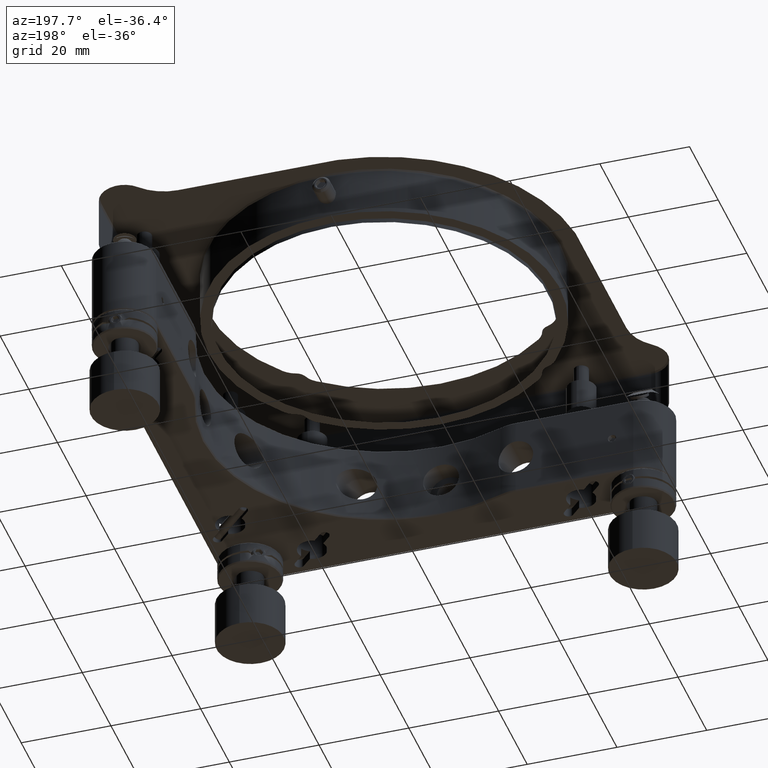
[diagram: clean part render]
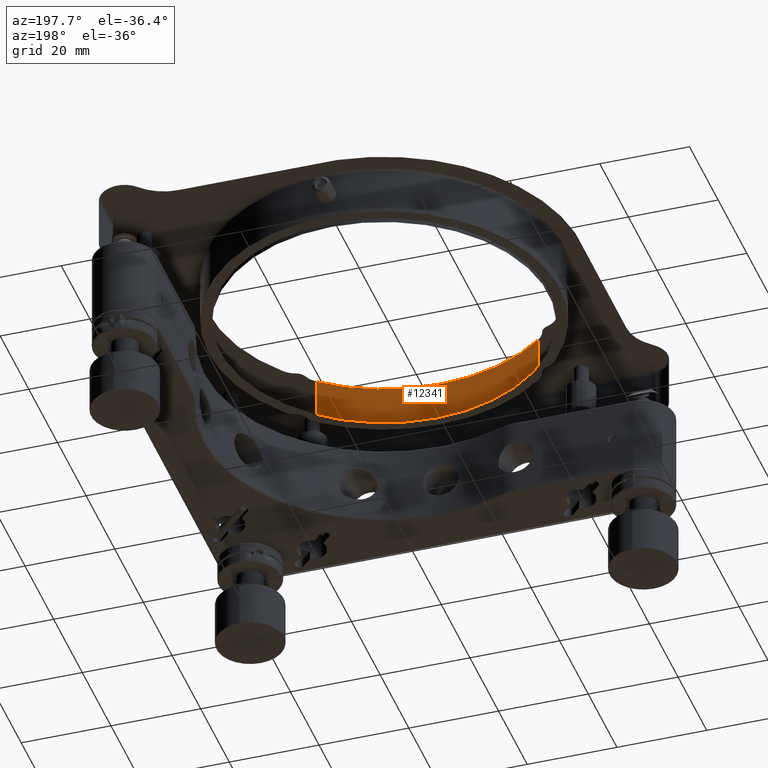
[diagram: same view with one face highlighted and labeled with its STEP entity id]
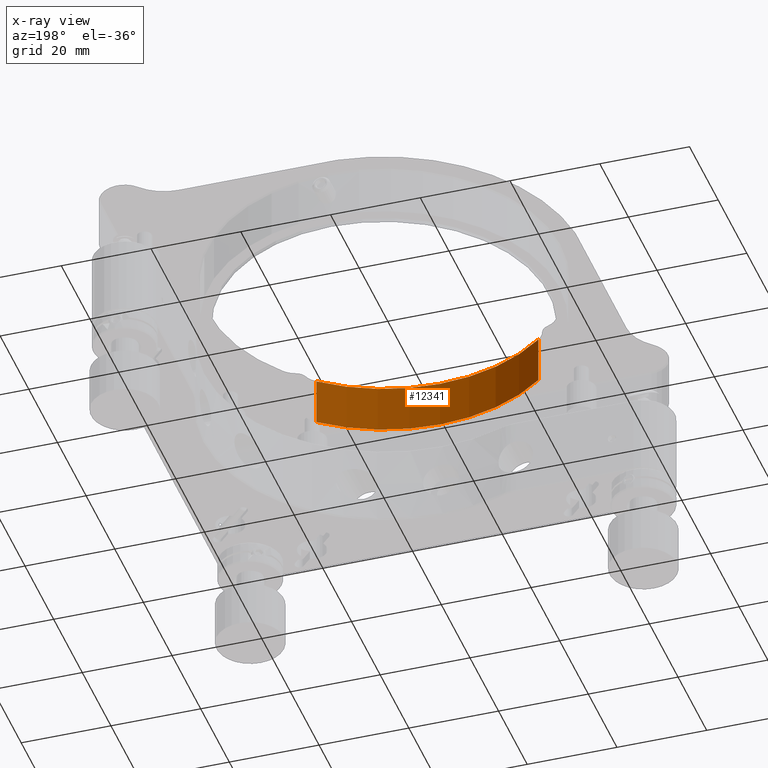
[diagram: x-ray of the same camera — body ghosted, the highlighted face saturated]
A machine part, auxiliary view. The second image highlights one B-rep face of the part: STEP entity #12341.
The next image is the same camera in x-ray: the body ghosted, the highlighted face saturated — about 0% of this face is hidden behind the body in this view.
In plain terms, the highlighted cylindrical surface (partial cylindrical patch) has radius 39.1 mm, axis along (0, -0, 1).
Its self-contained STEP definition (entity closure, byte-faithful):
#388 = ORIENTED_EDGE ( 'NONE', *, *, #9098, .T. ) ;
#393 = VERTEX_POINT ( 'NONE', #17038 ) ;
#667 = CARTESIAN_POINT ( 'NONE',  ( -24.73133962535597519, -30.28482855053491463, -97.59150057757604202 ) ) ;
#1723 = CARTESIAN_POINT ( 'NONE',  ( 24.73133962535004926, -30.28482855053983513, 6.928932188134511172 ) ) ;
#1820 = LINE ( 'NONE', #667, #4549 ) ;
#1822 = CARTESIAN_POINT ( 'NONE',  ( 24.73133962535299091, -30.28482855053740863, 13.99999999999997868 ) ) ;
#1878 = AXIS2_PLACEMENT_3D ( 'NONE', #11546, #12876, #10129 ) ;
#2439 = CYLINDRICAL_SURFACE ( 'NONE', #4232, 39.10000000000000142 ) ;
#2754 = CIRCLE ( 'NONE', #4184, 39.10000000000000142 ) ;
#3338 = ORIENTED_EDGE ( 'NONE', *, *, #16499, .T. ) ;
#4184 = AXIS2_PLACEMENT_3D ( 'NONE', #9200, #13618, #9283 ) ;
#4232 = AXIS2_PLACEMENT_3D ( 'NONE', #6596, #7834, #14733 ) ;
#4467 = DIRECTION ( 'NONE',  ( -1.137208903880104210E-16, 1.216571513026822848E-16, -1.000000000000000000 ) ) ;
#4549 = VECTOR ( 'NONE', #15178, 1000.000000000000000 ) ;
#5053 = ORIENTED_EDGE ( 'NONE', *, *, #10915, .T. ) ;
#6596 = CARTESIAN_POINT ( 'NONE',  ( 1.300335311408469731E-15, 4.508649125234561723E-14, -97.59150057757604202 ) ) ;
#7834 = DIRECTION ( 'NONE',  ( 1.137208903880104210E-16, -1.216571513026822848E-16, 1.000000000000000000 ) ) ;
#9098 = EDGE_CURVE ( 'NONE', #393, #17323, #17146, .T. ) ;
#9200 = CARTESIAN_POINT ( 'NONE',  ( 1.399062011682459279E-14, 3.151058718248609321E-14, 13.99999999999998401 ) ) ;
#9283 = DIRECTION ( 'NONE',  ( 0.000000000000000000, -1.000000000000000000, -1.330989879266092409E-16 ) ) ;
#9864 = VERTEX_POINT ( 'NONE', #12640 ) ;
#10129 = DIRECTION ( 'NONE',  ( 0.000000000000000000, -1.000000000000000000, -8.873265861773948569E-17 ) ) ;
#10712 = VECTOR ( 'NONE', #4467, 1000.000000000000000 ) ;
#10802 = EDGE_LOOP ( 'NONE', ( #388, #3338, #5053, #12934 ) ) ;
#10915 = EDGE_CURVE ( 'NONE', #9864, #11384, #2754, .T. ) ;
#11384 = VERTEX_POINT ( 'NONE', #1822 ) ;
#11546 = CARTESIAN_POINT ( 'NONE',  ( 1.520743364397455933E-14, 3.020885566354926109E-14, 24.69999999998465157 ) ) ;
#12028 = CARTESIAN_POINT ( 'NONE',  ( -24.73133962535739983, -30.28482855051715106, 24.69999999998464091 ) ) ;
#12341 = ADVANCED_FACE ( 'NONE', ( #15891 ), #2439, .T. ) ;
#12640 = CARTESIAN_POINT ( 'NONE',  ( -24.73133962535595387, -30.28482855053496436, 13.99999999999999112 ) ) ;
#12876 = DIRECTION ( 'NONE',  ( -1.137208903880104210E-16, 1.216571513026822848E-16, -1.000000000000000000 ) ) ;
#12934 = ORIENTED_EDGE ( 'NONE', *, *, #14052, .F. ) ;
#13618 = DIRECTION ( 'NONE',  ( 1.137208903880104210E-16, -1.216571513026822848E-16, 1.000000000000000000 ) ) ;
#14052 = EDGE_CURVE ( 'NONE', #393, #11384, #16505, .T. ) ;
#14733 = DIRECTION ( 'NONE',  ( 0.000000000000000000, -1.000000000000000000, 0.000000000000000000 ) ) ;
#15178 = DIRECTION ( 'NONE',  ( -1.137208903880104210E-16, 1.216571513026822848E-16, -1.000000000000000000 ) ) ;
#15891 = FACE_OUTER_BOUND ( 'NONE', #10802, .T. ) ;
#16499 = EDGE_CURVE ( 'NONE', #17323, #9864, #1820, .T. ) ;
#16505 = LINE ( 'NONE', #1723, #10712 ) ;
#17038 = CARTESIAN_POINT ( 'NONE',  ( 24.73133962535150943, -30.28482855053860590, 24.69999999998846008 ) ) ;
#17146 = CIRCLE ( 'NONE', #1878, 39.10000000000000142 ) ;
#17323 = VERTEX_POINT ( 'NONE', #12028 ) ;